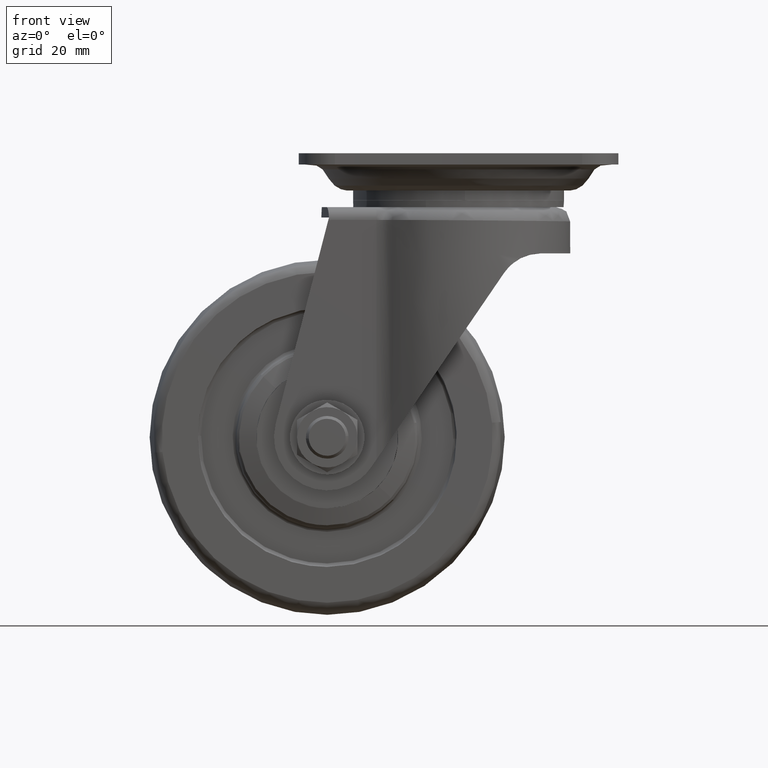
[diagram: clean part render]
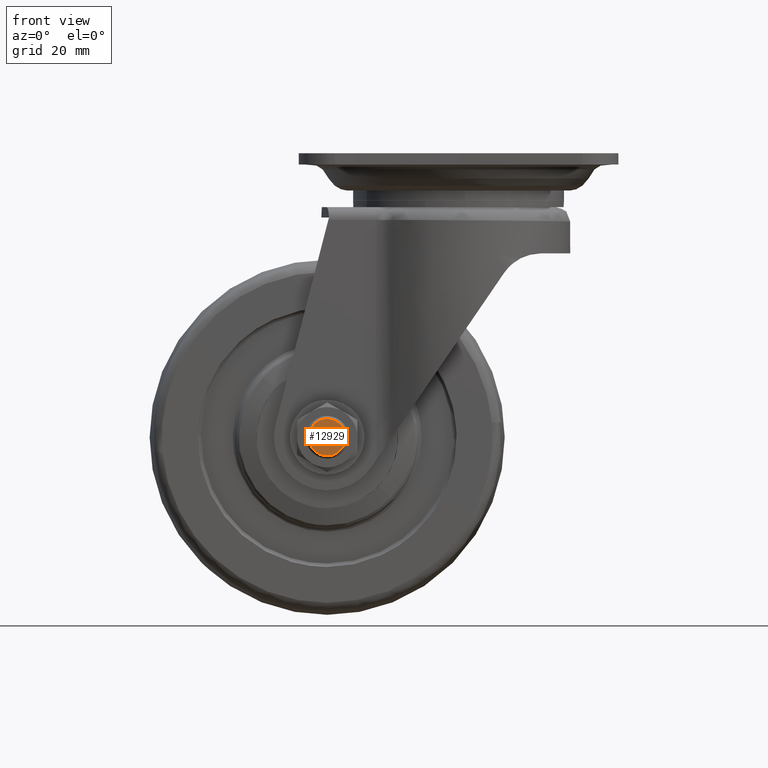
[diagram: same view with one face highlighted and labeled with its STEP entity id]
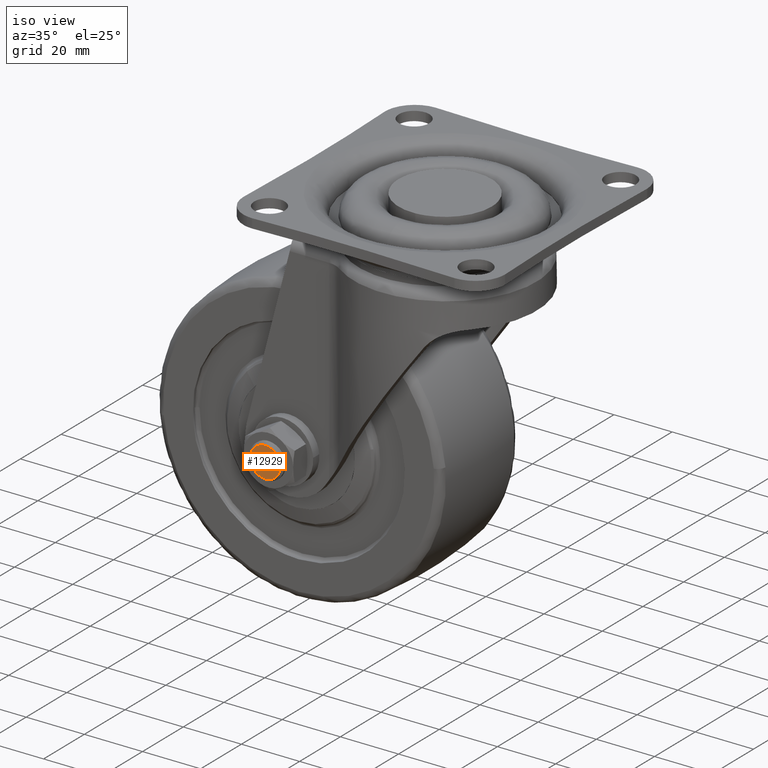
[diagram: same view with one face highlighted and labeled with its STEP entity id]
A machine part, front view. The second image highlights one B-rep face of the part: STEP entity #12929.
A second angle (iso view) of the same face is appended — the face is thin or edge-on in the first view.
In plain terms, the highlighted face is a freeform B-spline surface patch.
Its self-contained STEP definition (entity closure, byte-faithful):
#12858=CARTESIAN_POINT('',(-42.719391511893157,-35.462021999999848,-74.280480423754867));
#12859=CARTESIAN_POINT('',(-42.719391511893157,-35.462021999999848,-85.719519855192075));
#12860=CARTESIAN_POINT('',(-31.280608581090721,-35.462021999999848,-74.280480423754867));
#12861=CARTESIAN_POINT('',(-31.280608581090721,-35.462021999999848,-85.719519855192075));
#12862=B_SPLINE_SURFACE_WITH_KNOTS('',1,1,((#12858,#12860),(#12859,#12861)),.UNSPECIFIED.,.F.,.F.,.U.,(2,2),(2,2),(0.0,11.439039431437211),(0.0,11.438782930802439),.UNSPECIFIED.);
#12863=CARTESIAN_POINT('',(-42.190336884724744,-35.462021999854016,-80.317454604436904));
#12864=VERTEX_POINT('',#12863);
#12865=CARTESIAN_POINT('',(-37.0,-35.462021999999848,-74.799963999997530));
#12866=VERTEX_POINT('',#12865);
#12867=CARTESIAN_POINT('',(-42.190336884724736,-35.462021999854031,-80.317454604436904));
#12868=CARTESIAN_POINT('',(-42.200036000143577,-35.462021999856134,-80.158875469610948));
#12869=CARTESIAN_POINT('',(-42.200036000141353,-35.462021999858351,-80.000000000006267));
#12870=CARTESIAN_POINT('',(-42.200036000068572,-35.462021999931260,-74.799964000001708));
#12871=CARTESIAN_POINT('',(-37.0,-35.462021999999848,-74.799963999997530));
#12879=(BOUNDED_CURVE()B_SPLINE_CURVE(2,(#12867,#12868,#12869,#12870,#12871),.UNSPECIFIED.,.F.,.U.)B_SPLINE_CURVE_WITH_KNOTS((3,2,3),(0.739332962205344,0.750000000000000,1.0),.UNSPECIFIED.)CURVE()GEOMETRIC_REPRESENTATION_ITEM()RATIONAL_B_SPLINE_CURVE((0.976072041594709,0.987502787860474,1.0,0.707106781186548,1.0))REPRESENTATION_ITEM(''));
#12880=EDGE_CURVE('',#12864,#12866,#12879,.T.);
#12881=ORIENTED_EDGE('',*,*,#12880,.F.);
#12882=CARTESIAN_POINT('',(-37.0,-35.462021999999848,-85.200035999997752));
#12883=VERTEX_POINT('',#12882);
#12884=CARTESIAN_POINT('',(-37.0,-35.462021999999848,-85.200035999997752));
#12885=CARTESIAN_POINT('',(-41.891705412360658,-35.462021999926939,-85.200036000002200));
#12886=CARTESIAN_POINT('',(-42.190336884724736,-35.462021999854031,-80.317454604436904));
#12894=(BOUNDED_CURVE()B_SPLINE_CURVE(2,(#12884,#12885,#12886),.UNSPECIFIED.,.F.,.U.)B_SPLINE_CURVE_WITH_KNOTS((3,3),(0.500000000000000,0.739332962205344),.UNSPECIFIED.)CURVE()GEOMETRIC_REPRESENTATION_ITEM()RATIONAL_B_SPLINE_CURVE((1.0,0.719603993326074,0.976072041594709))REPRESENTATION_ITEM(''));
#12895=EDGE_CURVE('',#12883,#12864,#12894,.T.);
#12896=ORIENTED_EDGE('',*,*,#12895,.F.);
#12897=CARTESIAN_POINT('',(-31.809663115275260,-35.462021999854016,-79.682545395558392));
#12898=VERTEX_POINT('',#12897);
#12899=CARTESIAN_POINT('',(-31.809663115275267,-35.462021999854024,-79.682545395558392));
#12900=CARTESIAN_POINT('',(-31.799963999856431,-35.462021999856120,-79.841124530384334));
#12901=CARTESIAN_POINT('',(-31.799963999858651,-35.462021999858337,-79.999999999988987));
#12902=CARTESIAN_POINT('',(-31.799963999931428,-35.462021999931260,-85.200035999993545));
#12903=CARTESIAN_POINT('',(-37.0,-35.462021999999848,-85.200035999997752));
#12911=(BOUNDED_CURVE()B_SPLINE_CURVE(2,(#12899,#12900,#12901,#12902,#12903),.UNSPECIFIED.,.F.,.U.)B_SPLINE_CURVE_WITH_KNOTS((3,2,3),(0.239332962205345,0.250000000000000,0.500000000000000),.UNSPECIFIED.)CURVE()GEOMETRIC_REPRESENTATION_ITEM()RATIONAL_B_SPLINE_CURVE((0.976072041594712,0.987502787860475,1.0,0.707106781186548,1.0))REPRESENTATION_ITEM(''));
#12912=EDGE_CURVE('',#12898,#12883,#12911,.T.);
#12913=ORIENTED_EDGE('',*,*,#12912,.F.);
#12914=CARTESIAN_POINT('',(-37.0,-35.462021999999848,-74.799963999997530));
#12915=CARTESIAN_POINT('',(-32.108294587639307,-35.462021999926925,-74.799963999993082));
#12916=CARTESIAN_POINT('',(-31.809663115275267,-35.462021999854016,-79.682545395558392));
#12924=(BOUNDED_CURVE()B_SPLINE_CURVE(2,(#12914,#12915,#12916),.UNSPECIFIED.,.F.,.U.)B_SPLINE_CURVE_WITH_KNOTS((3,3),(0.0,0.239332962205345),.UNSPECIFIED.)CURVE()GEOMETRIC_REPRESENTATION_ITEM()RATIONAL_B_SPLINE_CURVE((1.0,0.719603993326073,0.976072041594711))REPRESENTATION_ITEM(''));
#12925=EDGE_CURVE('',#12866,#12898,#12924,.T.);
#12926=ORIENTED_EDGE('',*,*,#12925,.F.);
#12927=EDGE_LOOP('',(#12881,#12896,#12913,#12926));
#12928=FACE_OUTER_BOUND('',#12927,.T.);
#12929=ADVANCED_FACE('',(#12928),#12862,.T.);